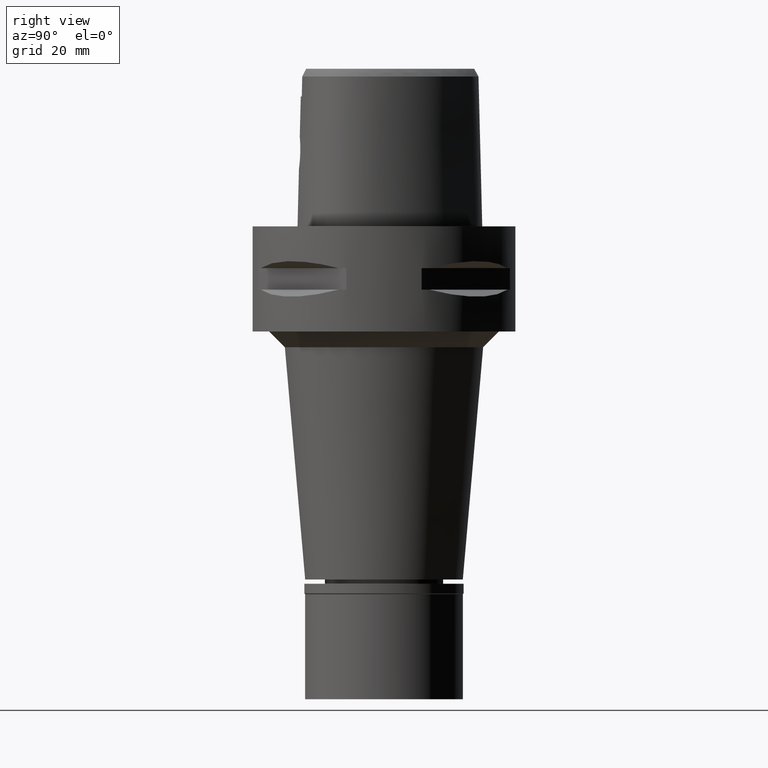
[diagram: clean part render]
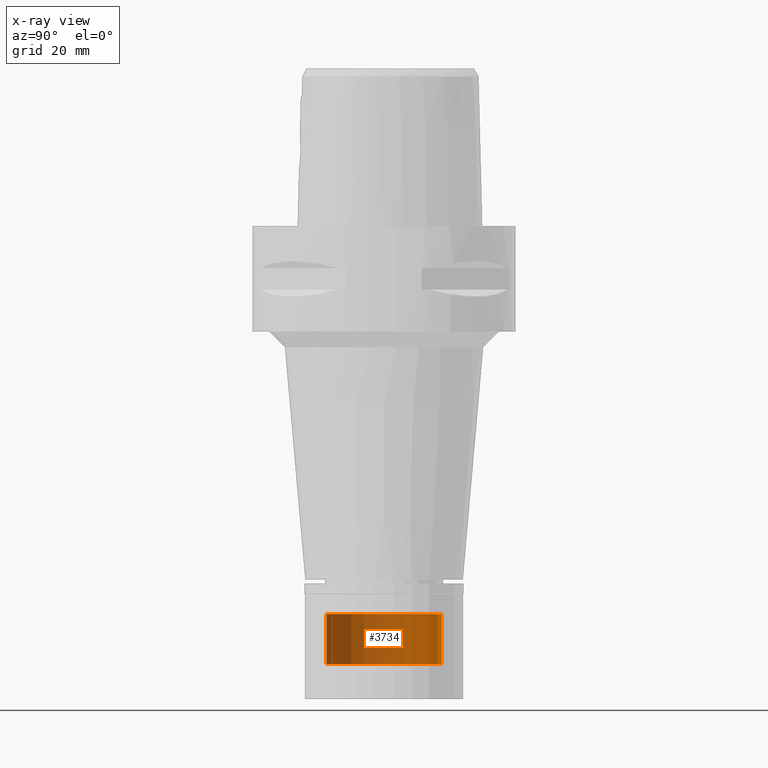
[diagram: x-ray — body ghosted, one internal face saturated and labeled with its STEP entity id]
A machine part, right view, then the same camera in x-ray: the body is ghosted and one INTERNAL B-rep face — a face not visible from any outside direction — is saturated and labeled: STEP entity #3734.
In plain terms, the highlighted cylindrical surface (partial cylindrical patch) has radius 11 mm, axis along (0, 0, -1).
Its self-contained STEP definition (entity closure, byte-faithful):
#42 = CARTESIAN_POINT ( 'NONE',  ( 0.0000000000000000000, -11.00000000000000000, -73.80000000000001137 ) ) ;
#155 = CARTESIAN_POINT ( 'NONE',  ( 0.0000000000000000000, 11.00000000000000000, -73.80000000000001137 ) ) ;
#267 = CARTESIAN_POINT ( 'NONE',  ( 0.0000000000000000000, 1.275653338331999844E-14, -73.80000000000001137 ) ) ;
#741 = VERTEX_POINT ( 'NONE', #155 ) ;
#994 = CARTESIAN_POINT ( 'NONE',  ( 0.0000000000000000000, 1.275653338331999844E-14, -83.29999999999999716 ) ) ;
#1014 = CIRCLE ( 'NONE', #4234, 11.00000000000000000 ) ;
#1407 = VECTOR ( 'NONE', #1658, 1000.000000000000000 ) ;
#1432 = VERTEX_POINT ( 'NONE', #4682 ) ;
#1497 = AXIS2_PLACEMENT_3D ( 'NONE', #267, #1768, #3604 ) ;
#1530 = LINE ( 'NONE', #42, #2186 ) ;
#1579 = CIRCLE ( 'NONE', #1497, 11.00000000000000000 ) ;
#1658 = DIRECTION ( 'NONE',  ( 0.0000000000000000000, 0.0000000000000000000, -1.000000000000000000 ) ) ;
#1768 = DIRECTION ( 'NONE',  ( 0.0000000000000000000, 0.0000000000000000000, -1.000000000000000000 ) ) ;
#1928 = EDGE_LOOP ( 'NONE', ( #4880, #3798, #3377, #4786 ) ) ;
#1972 = CARTESIAN_POINT ( 'NONE',  ( 0.0000000000000000000, 11.00000000000000000, -83.29999999999999716 ) ) ;
#2186 = VECTOR ( 'NONE', #2677, 1000.000000000000000 ) ;
#2415 = LINE ( 'NONE', #4272, #1407 ) ;
#2677 = DIRECTION ( 'NONE',  ( 0.0000000000000000000, 0.0000000000000000000, -1.000000000000000000 ) ) ;
#2927 = DIRECTION ( 'NONE',  ( 0.0000000000000000000, 1.000000000000000000, 0.0000000000000000000 ) ) ;
#3287 = AXIS2_PLACEMENT_3D ( 'NONE', #4855, #4015, #3653 ) ;
#3336 = FACE_OUTER_BOUND ( 'NONE', #1928, .T. ) ;
#3377 = ORIENTED_EDGE ( 'NONE', *, *, #3885, .T. ) ;
#3480 = EDGE_CURVE ( 'NONE', #1432, #3724, #1530, .T. ) ;
#3482 = VERTEX_POINT ( 'NONE', #1972 ) ;
#3509 = EDGE_CURVE ( 'NONE', #741, #3482, #2415, .T. ) ;
#3604 = DIRECTION ( 'NONE',  ( 0.0000000000000000000, -1.000000000000000000, 0.0000000000000000000 ) ) ;
#3653 = DIRECTION ( 'NONE',  ( 0.0000000000000000000, -1.000000000000000000, 0.0000000000000000000 ) ) ;
#3707 = CARTESIAN_POINT ( 'NONE',  ( 0.0000000000000000000, -11.00000000000000000, -83.29999999999999716 ) ) ;
#3724 = VERTEX_POINT ( 'NONE', #3707 ) ;
#3734 = ADVANCED_FACE ( 'NONE', ( #3336 ), #4421, .T. ) ;
#3798 = ORIENTED_EDGE ( 'NONE', *, *, #3480, .F. ) ;
#3885 = EDGE_CURVE ( 'NONE', #1432, #741, #1579, .T. ) ;
#3914 = EDGE_CURVE ( 'NONE', #3482, #3724, #1014, .T. ) ;
#4015 = DIRECTION ( 'NONE',  ( 0.0000000000000000000, 0.0000000000000000000, -1.000000000000000000 ) ) ;
#4234 = AXIS2_PLACEMENT_3D ( 'NONE', #994, #4766, #2927 ) ;
#4272 = CARTESIAN_POINT ( 'NONE',  ( 0.0000000000000000000, 11.00000000000000000, -73.80000000000001137 ) ) ;
#4421 = CYLINDRICAL_SURFACE ( 'NONE', #3287, 11.00000000000000000 ) ;
#4682 = CARTESIAN_POINT ( 'NONE',  ( 0.0000000000000000000, -11.00000000000000000, -73.80000000000001137 ) ) ;
#4766 = DIRECTION ( 'NONE',  ( 0.0000000000000000000, 0.0000000000000000000, 1.000000000000000000 ) ) ;
#4786 = ORIENTED_EDGE ( 'NONE', *, *, #3509, .T. ) ;
#4855 = CARTESIAN_POINT ( 'NONE',  ( 0.0000000000000000000, 1.275653338331999844E-14, 4.165000000000000036 ) ) ;
#4880 = ORIENTED_EDGE ( 'NONE', *, *, #3914, .T. ) ;